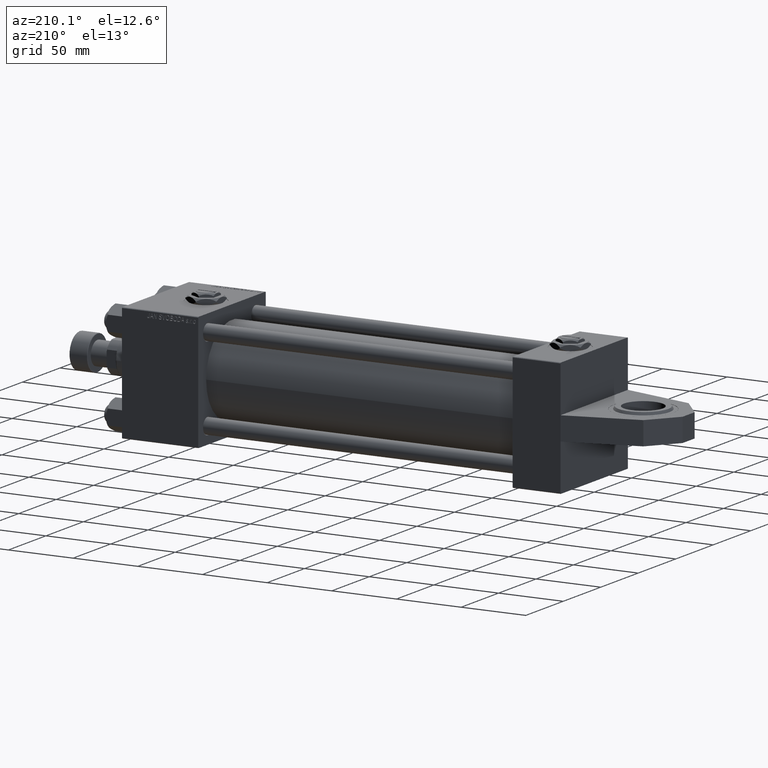
[diagram: clean part render]
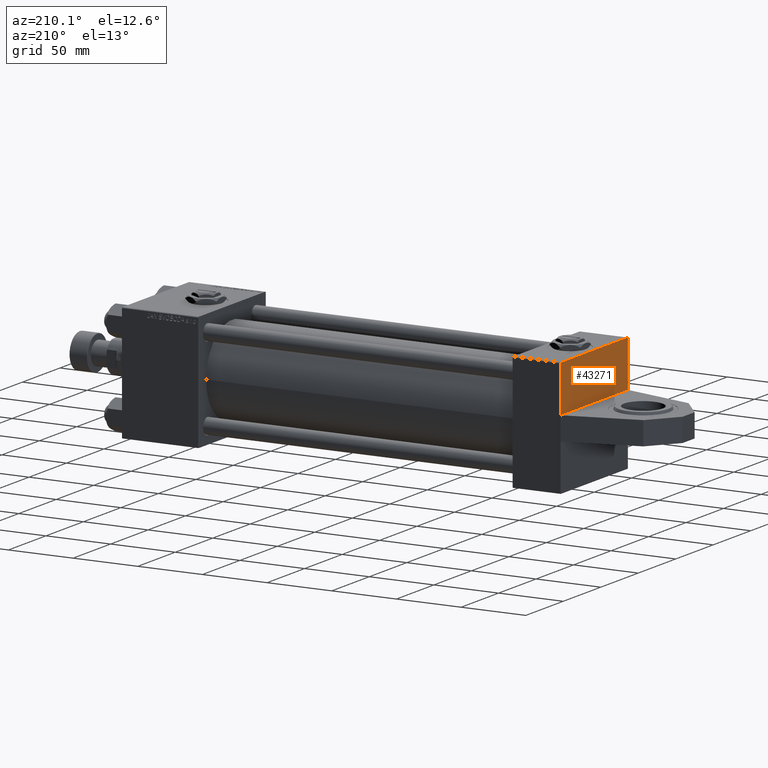
[diagram: same view with one face highlighted and labeled with its STEP entity id]
A machine part, auxiliary view. The second image highlights one B-rep face of the part: STEP entity #43271.
In plain terms, the highlighted planar face has unit normal (-1, 0, 0).
Its self-contained STEP definition (entity closure, byte-faithful):
#857 = VECTOR ( 'NONE', #10071, 1000.000000000000000 ) ;
#1131 = EDGE_LOOP ( 'NONE', ( #11854, #47008, #46666, #5705, #41916, #3262 ) ) ;
#2492 = DIRECTION ( 'NONE',  ( 0.000000000000000000, 0.000000000000000000, -1.000000000000000000 ) ) ;
#3262 = ORIENTED_EDGE ( 'NONE', *, *, #21315, .T. ) ;
#3633 = LINE ( 'NONE', #44134, #23059 ) ;
#4786 = CARTESIAN_POINT ( 'NONE',  ( 0.000000000000000000, 44.49999999999998579, 45.00000000000001421 ) ) ;
#5025 = VERTEX_POINT ( 'NONE', #29096 ) ;
#5705 = ORIENTED_EDGE ( 'NONE', *, *, #26697, .T. ) ;
#6174 = CARTESIAN_POINT ( 'NONE',  ( 0.000000000000000000, 44.74999999999998579, -44.74999999999998579 ) ) ;
#8896 = FACE_OUTER_BOUND ( 'NONE', #1131, .T. ) ;
#9087 = EDGE_CURVE ( 'NONE', #31251, #27998, #21805, .T. ) ;
#9211 = EDGE_CURVE ( 'NONE', #31251, #32825, #3633, .T. ) ;
#10071 = DIRECTION ( 'NONE',  ( 0.000000000000000000, -1.000000000000000000, -1.541976423090495387E-16 ) ) ;
#11147 = CARTESIAN_POINT ( 'NONE',  ( 0.000000000000000000, 9.000000000000000000, 45.00000000000000000 ) ) ;
#11854 = ORIENTED_EDGE ( 'NONE', *, *, #15903, .F. ) ;
#12768 = LINE ( 'NONE', #41265, #27460 ) ;
#12885 = DIRECTION ( 'NONE',  ( -0.000000000000000000, 0.000000000000000000, 1.000000000000000000 ) ) ;
#14240 = LINE ( 'NONE', #31519, #50390 ) ;
#15903 = EDGE_CURVE ( 'NONE', #27998, #27896, #14240, .T. ) ;
#16952 = DIRECTION ( 'NONE',  ( 0.000000000000000000, 0.000000000000000000, -1.000000000000000000 ) ) ;
#20228 = VERTEX_POINT ( 'NONE', #27796 ) ;
#21315 = EDGE_CURVE ( 'NONE', #5025, #27896, #12768, .T. ) ;
#21805 = LINE ( 'NONE', #22072, #857 ) ;
#22072 = CARTESIAN_POINT ( 'NONE',  ( 0.000000000000000000, 44.99999999999998579, 45.00000000000001421 ) ) ;
#22847 = DIRECTION ( 'NONE',  ( 0.000000000000000000, 0.7071067811865474617, -0.7071067811865474617 ) ) ;
#23059 = VECTOR ( 'NONE', #22847, 1000.000000000000114 ) ;
#24741 = DIRECTION ( 'NONE',  ( 0.000000000000000000, -1.000000000000000000, -1.541976423090495633E-16 ) ) ;
#25615 = LINE ( 'NONE', #6174, #37901 ) ;
#25697 = AXIS2_PLACEMENT_3D ( 'NONE', #49113, #33123, #12885 ) ;
#26697 = EDGE_CURVE ( 'NONE', #32825, #20228, #28935, .T. ) ;
#27460 = VECTOR ( 'NONE', #24741, 1000.000000000000000 ) ;
#27477 = EDGE_CURVE ( 'NONE', #20228, #5025, #25615, .T. ) ;
#27796 = CARTESIAN_POINT ( 'NONE',  ( 0.000000000000000000, 44.99999999999998579, -44.49999999999995737 ) ) ;
#27896 = VERTEX_POINT ( 'NONE', #42348 ) ;
#27998 = VERTEX_POINT ( 'NONE', #11147 ) ;
#28589 = CARTESIAN_POINT ( 'NONE',  ( 0.000000000000000000, 44.99999999999998579, 44.50000000000001421 ) ) ;
#28935 = LINE ( 'NONE', #42258, #44673 ) ;
#29096 = CARTESIAN_POINT ( 'NONE',  ( 0.000000000000000000, 44.49999999999998579, -44.99999999999998579 ) ) ;
#31251 = VERTEX_POINT ( 'NONE', #4786 ) ;
#31519 = CARTESIAN_POINT ( 'NONE',  ( 0.000000000000000000, 9.000000000000000000, 45.00000000000000000 ) ) ;
#32603 = PLANE ( 'NONE',  #25697 ) ;
#32825 = VERTEX_POINT ( 'NONE', #28589 ) ;
#33123 = DIRECTION ( 'NONE',  ( -1.000000000000000000, 0.000000000000000000, -0.000000000000000000 ) ) ;
#37901 = VECTOR ( 'NONE', #46672, 1000.000000000000114 ) ;
#41265 = CARTESIAN_POINT ( 'NONE',  ( 0.000000000000000000, 44.99999999999998579, -44.99999999999998579 ) ) ;
#41916 = ORIENTED_EDGE ( 'NONE', *, *, #27477, .T. ) ;
#42258 = CARTESIAN_POINT ( 'NONE',  ( 0.000000000000000000, 44.99999999999998579, 45.00000000000001421 ) ) ;
#42348 = CARTESIAN_POINT ( 'NONE',  ( 0.000000000000000000, 9.000000000000000000, -45.00000000000000000 ) ) ;
#43271 = ADVANCED_FACE ( 'NONE', ( #8896 ), #32603, .T. ) ;
#44134 = CARTESIAN_POINT ( 'NONE',  ( 0.000000000000000000, 44.74999999999999289, 44.74999999999999289 ) ) ;
#44673 = VECTOR ( 'NONE', #16952, 1000.000000000000000 ) ;
#46666 = ORIENTED_EDGE ( 'NONE', *, *, #9211, .T. ) ;
#46672 = DIRECTION ( 'NONE',  ( -0.000000000000000000, -0.7071067811865474617, -0.7071067811865474617 ) ) ;
#47008 = ORIENTED_EDGE ( 'NONE', *, *, #9087, .F. ) ;
#49113 = CARTESIAN_POINT ( 'NONE',  ( 0.000000000000000000, 0.000000000000000000, 0.000000000000000000 ) ) ;
#50390 = VECTOR ( 'NONE', #2492, 1000.000000000000000 ) ;